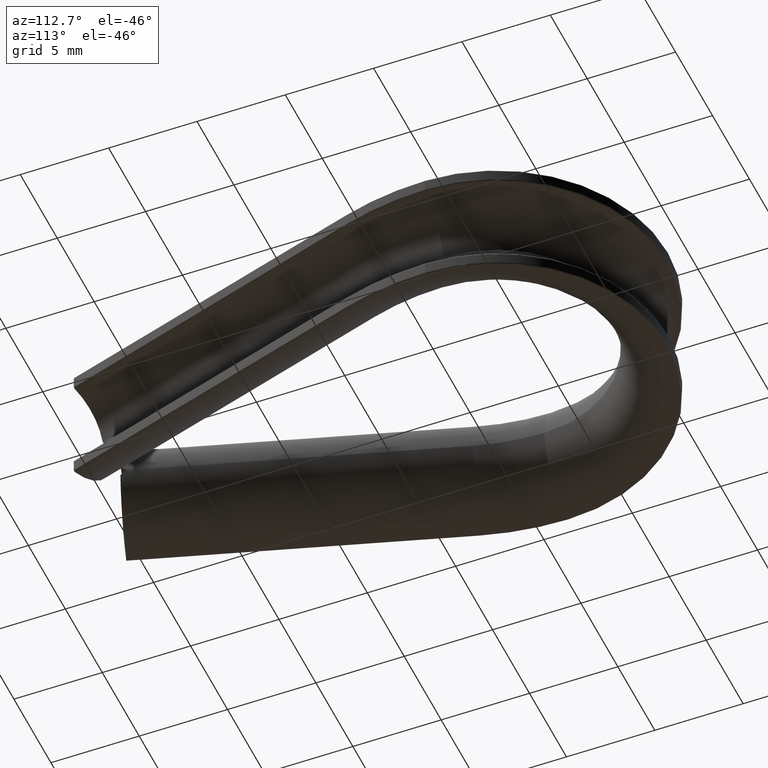
[diagram: clean part render]
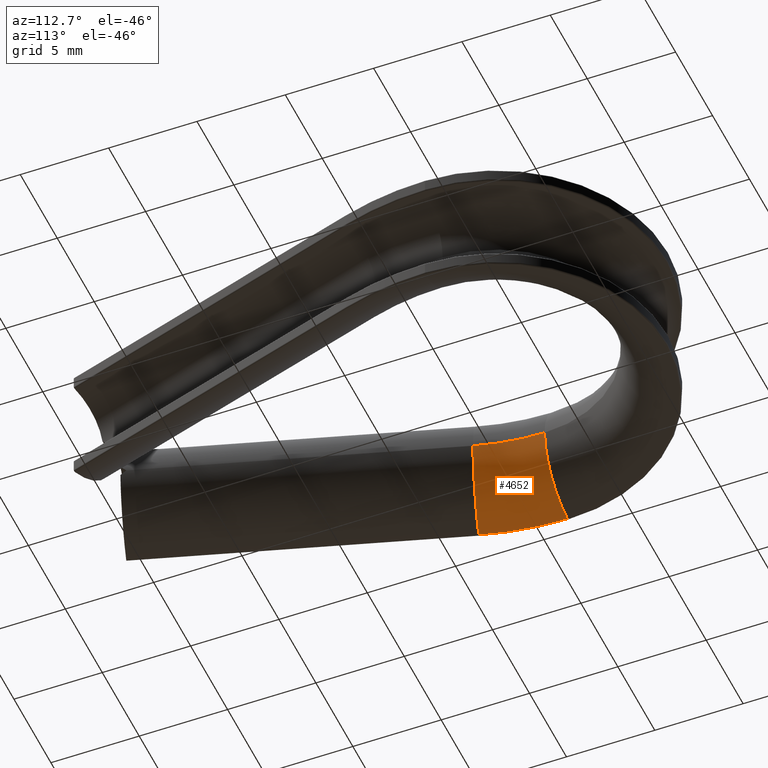
[diagram: same view with one face highlighted and labeled with its STEP entity id]
A machine part, auxiliary view. The second image highlights one B-rep face of the part: STEP entity #4652.
In plain terms, the highlighted toroidal blend (fillet) surface has major radius 16.55 mm and minor (blend) radius 3.55 mm.
Its self-contained STEP definition (entity closure, byte-faithful):
#3 = VERTEX_POINT ( 'NONE', #14366 ) ;
#45 = CARTESIAN_POINT ( 'NONE',  ( 6.499999999999999100, 21.50000000000000000, -4.347496136973103900E-016 ) ) ;
#553 = DIRECTION ( 'NONE',  ( 1.000000000000000000, 4.529034804847555100E-015, 0.0000000000000000000 ) ) ;
#1108 = ORIENTED_EDGE ( 'NONE', *, *, #10281, .T. ) ;
#1275 = AXIS2_PLACEMENT_3D ( 'NONE', #12873, #3362, #11658 ) ;
#1524 = CARTESIAN_POINT ( 'NONE',  ( -10.05000000000000400, 21.50000000000000000, 0.0000000000000000000 ) ) ;
#2362 = DIRECTION ( 'NONE',  ( -0.0000000000000000000, 0.0000000000000000000, 1.000000000000000000 ) ) ;
#3007 = CARTESIAN_POINT ( 'NONE',  ( -5.927872860635701200, 17.68581907090465000, 0.0000000000000000000 ) ) ;
#3059 = ORIENTED_EDGE ( 'NONE', *, *, #3514, .T. ) ;
#3297 = CARTESIAN_POINT ( 'NONE',  ( 6.499999999999999100, 21.50000000000000000, 0.0000000000000000000 ) ) ;
#3362 = DIRECTION ( 'NONE',  ( -0.2933985330073347600, 0.9559902200488998900, 0.0000000000000000000 ) ) ;
#3514 = EDGE_CURVE ( 'NONE', #3, #7970, #7341, .T. ) ;
#4397 = DIRECTION ( 'NONE',  ( -0.0000000000000000000, 0.0000000000000000000, 1.000000000000000000 ) ) ;
#4612 = CARTESIAN_POINT ( 'NONE',  ( -9.586956521738983400, 21.50000000000000000, -3.519671964436429200 ) ) ;
#4652 = ADVANCED_FACE ( 'NONE', ( #13594 ), #10427, .T. ) ;
#4859 = DIRECTION ( 'NONE',  ( -1.608122649676636600E-016, 1.000000000000000000, -0.0000000000000000000 ) ) ;
#5276 = EDGE_LOOP ( 'NONE', ( #6426, #8870, #1108, #3059 ) ) ;
#5464 = AXIS2_PLACEMENT_3D ( 'NONE', #45, #2362, #10666 ) ;
#6211 = CARTESIAN_POINT ( 'NONE',  ( -6.500000000000003600, 21.50000000000000000, -4.347496136973104900E-016 ) ) ;
#6426 = ORIENTED_EDGE ( 'NONE', *, *, #15369, .F. ) ;
#7341 = CIRCLE ( 'NONE', #11397, 16.08695652173913300 ) ;
#7970 = VERTEX_POINT ( 'NONE', #4612 ) ;
#8864 = DIRECTION ( 'NONE',  ( 0.0000000000000000000, -0.0000000000000000000, -1.000000000000000000 ) ) ;
#8870 = ORIENTED_EDGE ( 'NONE', *, *, #10965, .T. ) ;
#9141 = VERTEX_POINT ( 'NONE', #3007 ) ;
#10053 = CIRCLE ( 'NONE', #5464, 13.00000000000000500 ) ;
#10281 = EDGE_CURVE ( 'NONE', #9141, #3, #15198, .T. ) ;
#10427 = TOROIDAL_SURFACE ( 'NONE', #13085, 16.55000000000000100, 3.549999999999999800 ) ;
#10666 = DIRECTION ( 'NONE',  ( 1.000000000000000000, 0.0000000000000000000, 0.0000000000000000000 ) ) ;
#10965 = EDGE_CURVE ( 'NONE', #14212, #9141, #10053, .T. ) ;
#11021 = DIRECTION ( 'NONE',  ( 0.0000000000000000000, 0.0000000000000000000, -1.000000000000000000 ) ) ;
#11353 = AXIS2_PLACEMENT_3D ( 'NONE', #1524, #4859, #11021 ) ;
#11397 = AXIS2_PLACEMENT_3D ( 'NONE', #12536, #8864, #553 ) ;
#11658 = DIRECTION ( 'NONE',  ( 0.0000000000000000000, 0.0000000000000000000, -1.000000000000000000 ) ) ;
#12536 = CARTESIAN_POINT ( 'NONE',  ( 6.499999999999999100, 21.50000000000000000, -3.519671964436442000 ) ) ;
#12873 = CARTESIAN_POINT ( 'NONE',  ( -9.321638141809295100, 16.64425427872861000, 0.0000000000000000000 ) ) ;
#13085 = AXIS2_PLACEMENT_3D ( 'NONE', #3297, #4397, #13881 ) ;
#13488 = CIRCLE ( 'NONE', #11353, 3.549999999999999800 ) ;
#13594 = FACE_OUTER_BOUND ( 'NONE', #5276, .T. ) ;
#13881 = DIRECTION ( 'NONE',  ( 1.000000000000000000, 0.0000000000000000000, 0.0000000000000000000 ) ) ;
#14212 = VERTEX_POINT ( 'NONE', #6211 ) ;
#14366 = CARTESIAN_POINT ( 'NONE',  ( -8.878973105134379700, 16.78011055596899200, -3.519671964436442000 ) ) ;
#15198 = CIRCLE ( 'NONE', #1275, 3.549999999999999800 ) ;
#15369 = EDGE_CURVE ( 'NONE', #14212, #7970, #13488, .T. ) ;